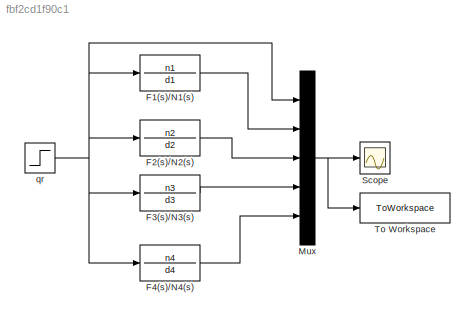
MODEL slx_fbf2cd1f90c1
KIND model
CONFIG AbsTol = auto
CONFIG EnableMultiTasking = off
CONFIG FixedStep = auto
CONFIG MaxStep = auto
CONFIG MinStep = auto
CONFIG RelTol = 1e-3
CONFIG SampleTimeConstraint = Unconstrained
CONFIG Solver = VariableStepAuto
CONFIG SolverName = VariableStepAuto
CONFIG StartTime = 0.0
CONFIG StopTime = 2
BLOCK [TransferFcn] F1(s)//N1(s)
  Denominator = d1
  Numerator = n1
BLOCK [TransferFcn] F2(s)//N2(s)
  Denominator = d2
  Numerator = n2
BLOCK [TransferFcn] F3(s)//N3(s)
  Denominator = d3
  Numerator = n3
BLOCK [TransferFcn] F4(s)//N4(s)
  Denominator = d4
  Numerator = n4
BLOCK [Mux] Mux
  DisplayOption = bar
  Inputs = 5
  Ports = [5, 1]
BLOCK [Scope] Scope
  Floating = off
  NumInputPorts = 1
  Ports = [1]
  ScopeSpecificationString = Simulink.scopes.TimeScopeBlockCfg('CurrentConfiguration', extmgr.ConfigurationSet(extmgr.Configuration('Core','General UI',true),extmgr.Configuration('Core','Source UI',true),extmgr.Configuration('Sources','WiredSimulink',true),extmgr.Configuration('Visuals','Time Domain',true,'SerializedDisplays',{struct('MinYLimReal','-0.01337','MaxYLimReal','0.38597','YLabelReal','','MinYLimMag','0.00000','MaxY...<+1564ch>
BLOCK [ToWorkspace] To Workspace
  FixptAsFi = on
  MaxDataPoints = inf
  Ports = [1]
  SampleTime = -1
  VariableName = simout
BLOCK [Step] qr
  After = 0.34
  SampleTime = 0
  Time = 0.5
LINE F1(s)//N1(s):1 -> Mux:2
LINE F2(s)//N2(s):1 -> Mux:3
LINE F3(s)//N3(s):1 -> Mux:4
LINE F4(s)//N4(s):1 -> Mux:5
NET Mux:1 -> Scope:1, To Workspace:1
NET qr:1 -> F1(s)//N1(s):1, F2(s)//N2(s):1, F3(s)//N3(s):1, F4(s)//N4(s):1, Mux:1
note: NET lines group one-source signal fan-out (src -> all destinations, sorted); 1:1 wires keep LINE
